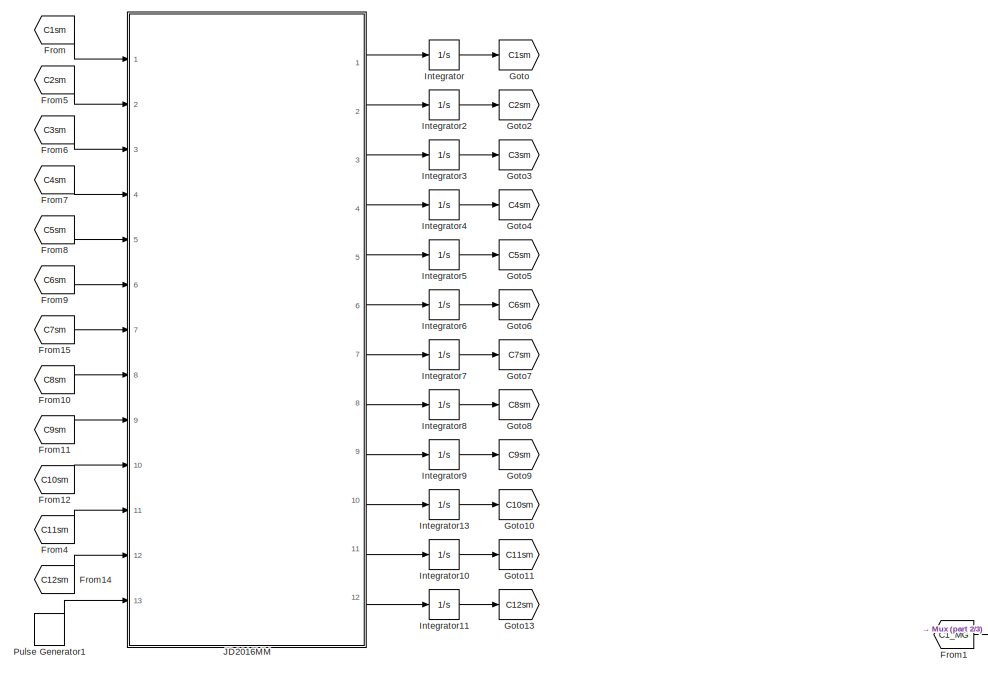
[diagram: root canvas - part 1/3, top left region]
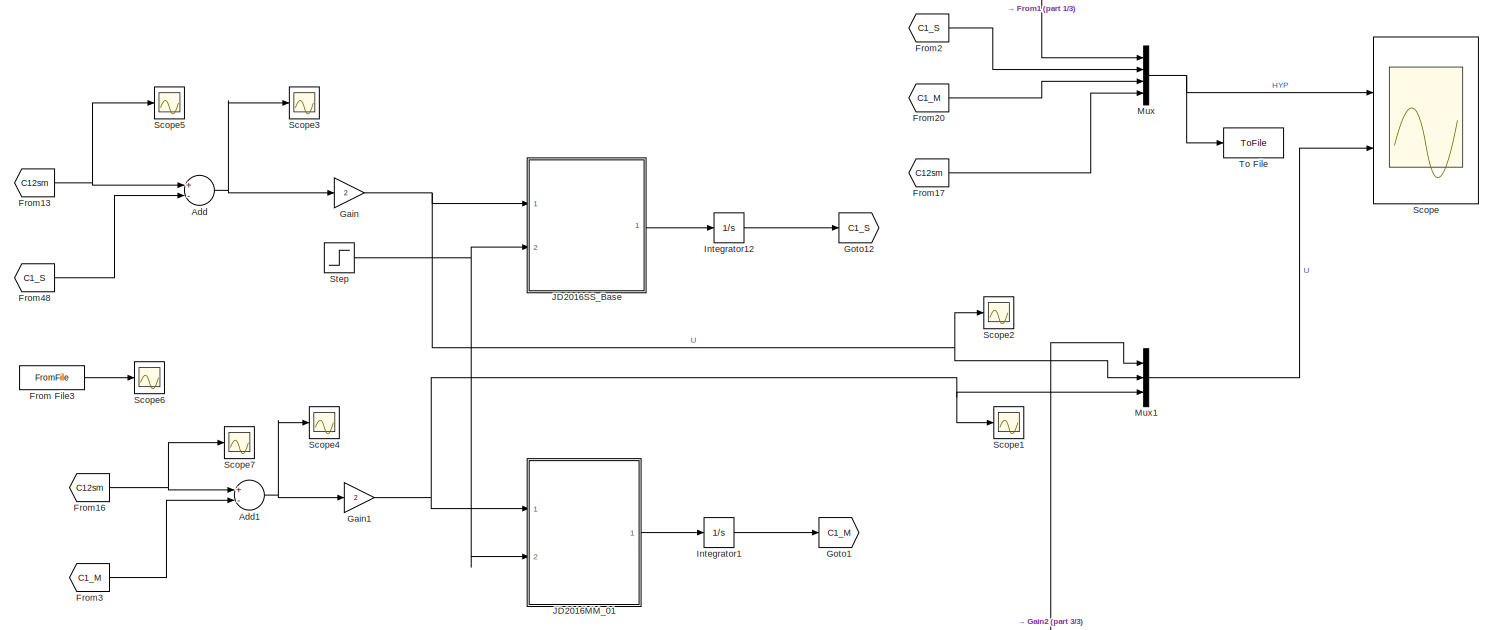
[diagram: root canvas - part 2/3, full width, middle band]
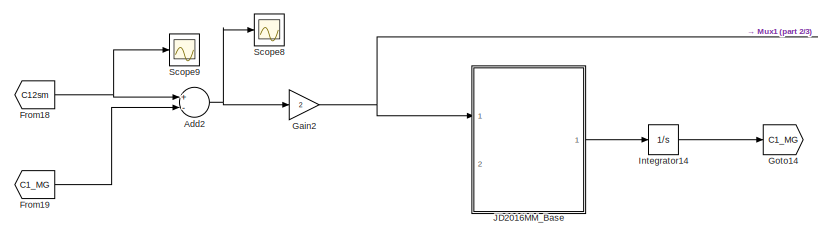
[diagram: root canvas - part 3/3, bottom left region]
MODEL slx_97e9ce0137db
KIND model
CONFIG AbsTol = auto
CONFIG EnableMultiTasking = on
CONFIG FixedStep = auto
CONFIG MaxStep = auto
CONFIG MinStep = auto
CONFIG RelTol = 1e-3
CONFIG SampleTimeConstraint = Unconstrained
CONFIG Solver = VariableStepAuto
CONFIG SolverName = VariableStepAuto
CONFIG StartTime = 0.0
CONFIG StopTime = 96
BLOCK [Sum] Add
  InputSameDT = off
  Inputs = +-
  OutDataTypeStr = Inherit: Inherit via internal rule
  Ports = [2, 1]
  SaturateOnIntegerOverflow = off
BLOCK [Sum] Add1
  InputSameDT = off
  Inputs = +-
  OutDataTypeStr = Inherit: Inherit via internal rule
  Ports = [2, 1]
  SaturateOnIntegerOverflow = off
BLOCK [Sum] Add2
  InputSameDT = off
  Inputs = +-
  OutDataTypeStr = Inherit: Inherit via internal rule
  Ports = [2, 1]
  SaturateOnIntegerOverflow = off
BLOCK [From] From
  GotoTag = C1sm
BLOCK [FromFile] From File3
  FileName = hypsetpoint.mat
  SampleTime = 0
BLOCK [From] From1
  GotoTag = C1_MG
BLOCK [From] From10
  GotoTag = C8sm
BLOCK [From] From11
  GotoTag = C9sm
BLOCK [From] From12
  GotoTag = C10sm
BLOCK [From] From13
  GotoTag = C12sm
BLOCK [From] From14
  GotoTag = C12sm
BLOCK [From] From15
  GotoTag = C7sm
BLOCK [From] From16
  GotoTag = C12sm
BLOCK [From] From17
  GotoTag = C12sm
BLOCK [From] From18
  GotoTag = C12sm
BLOCK [From] From19
  GotoTag = C1_MG
BLOCK [From] From2
  GotoTag = C1_S
BLOCK [From] From20
  GotoTag = C1_M
BLOCK [From] From3
  GotoTag = C1_M
BLOCK [From] From4
  GotoTag = C11sm
BLOCK [From] From48
  GotoTag = C1_S
BLOCK [From] From5
  GotoTag = C2sm
BLOCK [From] From6
  GotoTag = C3sm
BLOCK [From] From7
  GotoTag = C4sm
BLOCK [From] From8
  GotoTag = C5sm
BLOCK [From] From9
  GotoTag = C6sm
BLOCK [Gain] Gain
  Gain = 2
  OutDataTypeStr = Inherit: Inherit via internal rule
  ParamDataTypeStr = Inherit: Inherit via internal rule
  SaturateOnIntegerOverflow = off
BLOCK [Gain] Gain1
  Gain = 2
  OutDataTypeStr = Inherit: Inherit via internal rule
  ParamDataTypeStr = Inherit: Inherit via internal rule
  SaturateOnIntegerOverflow = off
BLOCK [Gain] Gain2
  Gain = 2
  OutDataTypeStr = Inherit: Inherit via internal rule
  ParamDataTypeStr = Inherit: Inherit via internal rule
  SaturateOnIntegerOverflow = off
BLOCK [Goto] Goto
  GotoTag = C1sm
BLOCK [Goto] Goto1
  GotoTag = C1_M
BLOCK [Goto] Goto10
  GotoTag = C10sm
BLOCK [Goto] Goto11
  GotoTag = C11sm
BLOCK [Goto] Goto12
  GotoTag = C1_S
BLOCK [Goto] Goto13
  GotoTag = C12sm
BLOCK [Goto] Goto14
  GotoTag = C1_MG
BLOCK [Goto] Goto2
  GotoTag = C2sm
BLOCK [Goto] Goto3
  GotoTag = C3sm
BLOCK [Goto] Goto4
  GotoTag = C4sm
BLOCK [Goto] Goto5
  GotoTag = C5sm
BLOCK [Goto] Goto6
  GotoTag = C6sm
BLOCK [Goto] Goto7
  GotoTag = C7sm
BLOCK [Goto] Goto8
  GotoTag = C8sm
BLOCK [Goto] Goto9
  GotoTag = C9sm
BLOCK [Integrator] Integrator
  InitialCondition = 1.3627
  Ports = [1, 1]
BLOCK [Integrator] Integrator1
  InitialCondition = 1.3627
  Ports = [1, 1]
BLOCK [Integrator] Integrator10
  InitialCondition = 0.0938
  Ports = [1, 1]
BLOCK [Integrator] Integrator11
  InitialCondition = 6.2713
  Ports = [1, 1]
BLOCK [Integrator] Integrator12
  InitialCondition = 1.3627
  Ports = [1, 1]
BLOCK [Integrator] Integrator13
  InitialCondition = 0.5547
  Ports = [1, 1]
BLOCK [Integrator] Integrator14
  InitialCondition = 1.3627
  Ports = [1, 1]
BLOCK [Integrator] Integrator2
  InitialCondition = 2.2647
  Ports = [1, 1]
BLOCK [Integrator] Integrator3
  InitialCondition = 0.9724
  Ports = [1, 1]
BLOCK [Integrator] Integrator4
  InitialCondition = 0.9495
  Ports = [1, 1]
BLOCK [Integrator] Integrator5
  InitialCondition = 0.1906
  Ports = [1, 1]
BLOCK [Integrator] Integrator6
  InitialCondition = 0.4318
  Ports = [1, 1]
BLOCK [Integrator] Integrator7
  InitialCondition = 0.0332
  Ports = [1, 1]
BLOCK [Integrator] Integrator8
  InitialCondition = 0.0189
  Ports = [1, 1]
BLOCK [Integrator] Integrator9
  InitialCondition = 0.3578
  Ports = [1, 1]
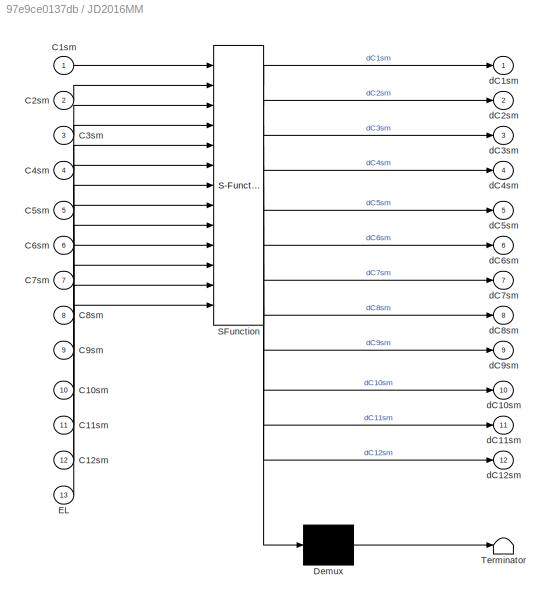
BLOCK [SubSystem] JD2016MM
  ErrorFcn = Stateflow.Translate.translate
  PermitHierarchicalResolution = ExplicitOnly
  Ports = [13, 12]
  RequestExecContextInheritance = off
  SFBlockType = MATLAB Function
  TreatAsAtomicUnit = on
  Variant = off
BLOCK [Demux] JD2016MM/ Demux 
  Outputs = 1
  Ports = [1, 1]
BLOCK [S-Function] JD2016MM/ SFunction 
  EnableBusSupport = on
  FunctionName = sf_sfun
  PortCounts = [13 13]
  Ports = [13, 13]
  SFcnIsStateOwnerBlock = off
  SFunctionDeploymentMode = off
  Tag = Stateflow S-Function S2File_JD2016MMSS 4
BLOCK [Terminator] JD2016MM/ Terminator 
BLOCK [Inport] JD2016MM/C10sm
  IconDisplay = Port number
  Port = 10
BLOCK [Inport] JD2016MM/C11sm
  IconDisplay = Port number
  Port = 11
BLOCK [Inport] JD2016MM/C12sm
  IconDisplay = Port number
  Port = 12
BLOCK [Inport] JD2016MM/C1sm
  IconDisplay = Port number
BLOCK [Inport] JD2016MM/C2sm
  IconDisplay = Port number
  Port = 2
BLOCK [Inport] JD2016MM/C3sm
  IconDisplay = Port number
  Port = 3
BLOCK [Inport] JD2016MM/C4sm
  IconDisplay = Port number
  Port = 4
BLOCK [Inport] JD2016MM/C5sm
  IconDisplay = Port number
  Port = 5
BLOCK [Inport] JD2016MM/C6sm
  IconDisplay = Port number
  Port = 6
BLOCK [Inport] JD2016MM/C7sm
  IconDisplay = Port number
  Port = 7
BLOCK [Inport] JD2016MM/C8sm
  IconDisplay = Port number
  Port = 8
BLOCK [Inport] JD2016MM/C9sm
  IconDisplay = Port number
  Port = 9
BLOCK [Inport] JD2016MM/EL
  IconDisplay = Port number
  Port = 13
BLOCK [Outport] JD2016MM/dC10sm
  IconDisplay = Port number
  Port = 10
BLOCK [Outport] JD2016MM/dC11sm
  IconDisplay = Port number
  Port = 11
BLOCK [Outport] JD2016MM/dC12sm
  IconDisplay = Port number
  Port = 12
BLOCK [Outport] JD2016MM/dC1sm
  IconDisplay = Port number
BLOCK [Outport] JD2016MM/dC2sm
  IconDisplay = Port number
  Port = 2
BLOCK [Outport] JD2016MM/dC3sm
  IconDisplay = Port number
  Port = 3
BLOCK [Outport] JD2016MM/dC4sm
  IconDisplay = Port number
  Port = 4
BLOCK [Outport] JD2016MM/dC5sm
  IconDisplay = Port number
  Port = 5
BLOCK [Outport] JD2016MM/dC6sm
  IconDisplay = Port number
  Port = 6
BLOCK [Outport] JD2016MM/dC7sm
  IconDisplay = Port number
  Port = 7
BLOCK [Outport] JD2016MM/dC8sm
  IconDisplay = Port number
  Port = 8
BLOCK [Outport] JD2016MM/dC9sm
  IconDisplay = Port number
  Port = 9
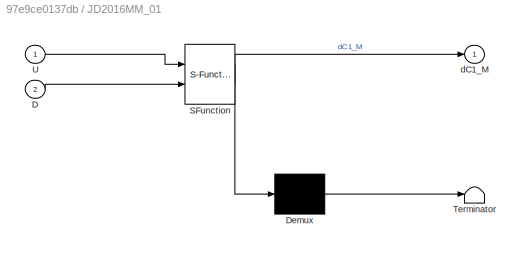
BLOCK [SubSystem] JD2016MM_01
  ErrorFcn = Stateflow.Translate.translate
  PermitHierarchicalResolution = ExplicitOnly
  Ports = [2, 1]
  RequestExecContextInheritance = off
  SFBlockType = MATLAB Function
  TreatAsAtomicUnit = on
  Variant = off
BLOCK [Demux] JD2016MM_01/ Demux 
  Outputs = 1
  Ports = [1, 1]
BLOCK [S-Function] JD2016MM_01/ SFunction 
  EnableBusSupport = on
  FunctionName = sf_sfun
  PortCounts = [2 2]
  Ports = [2, 2]
  SFcnIsStateOwnerBlock = off
  SFunctionDeploymentMode = off
  Tag = Stateflow S-Function S2File_JD2016MMSS 2
BLOCK [Terminator] JD2016MM_01/ Terminator 
BLOCK [Inport] JD2016MM_01/D
  IconDisplay = Port number
  Port = 2
BLOCK [Inport] JD2016MM_01/U
  IconDisplay = Port number
BLOCK [Outport] JD2016MM_01/dC1_M
  IconDisplay = Port number
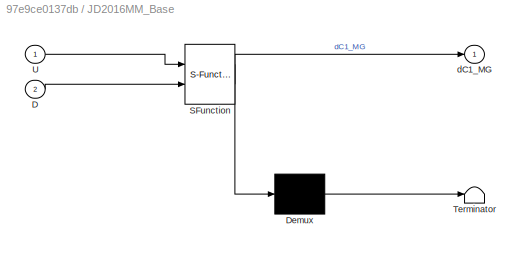
BLOCK [SubSystem] JD2016MM_Base
  ErrorFcn = Stateflow.Translate.translate
  PermitHierarchicalResolution = ExplicitOnly
  Ports = [2, 1]
  RequestExecContextInheritance = off
  SFBlockType = MATLAB Function
  TreatAsAtomicUnit = on
  Variant = off
BLOCK [Demux] JD2016MM_Base/ Demux 
  Outputs = 1
  Ports = [1, 1]
BLOCK [S-Function] JD2016MM_Base/ SFunction 
  EnableBusSupport = on
  FunctionName = sf_sfun
  PortCounts = [2 2]
  Ports = [2, 2]
  SFcnIsStateOwnerBlock = off
  SFunctionDeploymentMode = off
  Tag = Stateflow S-Function S2File_JD2016MMSS 3
BLOCK [Terminator] JD2016MM_Base/ Terminator 
BLOCK [Inport] JD2016MM_Base/D
  IconDisplay = Port number
  Port = 2
BLOCK [Inport] JD2016MM_Base/U
  IconDisplay = Port number
BLOCK [Outport] JD2016MM_Base/dC1_MG
  IconDisplay = Port number
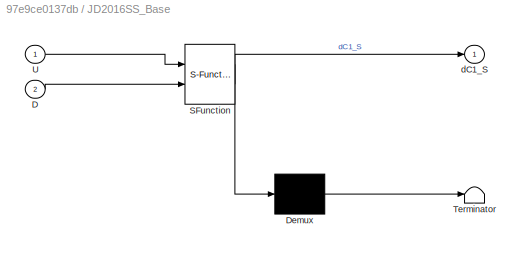
BLOCK [SubSystem] JD2016SS_Base
  ErrorFcn = Stateflow.Translate.translate
  PermitHierarchicalResolution = ExplicitOnly
  Ports = [2, 1]
  RequestExecContextInheritance = off
  SFBlockType = MATLAB Function
  TreatAsAtomicUnit = on
  Variant = off
BLOCK [Demux] JD2016SS_Base/ Demux 
  Outputs = 1
  Ports = [1, 1]
BLOCK [S-Function] JD2016SS_Base/ SFunction 
  EnableBusSupport = on
  FunctionName = sf_sfun
  PortCounts = [2 2]
  Ports = [2, 2]
  SFcnIsStateOwnerBlock = off
  SFunctionDeploymentMode = off
  Tag = Stateflow S-Function S2File_JD2016MMSS 1
BLOCK [Terminator] JD2016SS_Base/ Terminator 
BLOCK [Inport] JD2016SS_Base/D
  IconDisplay = Port number
  Port = 2
BLOCK [Inport] JD2016SS_Base/U
  IconDisplay = Port number
BLOCK [Outport] JD2016SS_Base/dC1_S
  IconDisplay = Port number
BLOCK [Mux] Mux
  DisplayOption = bar
  Ports = [4, 1]
BLOCK [Mux] Mux1
  DisplayOption = bar
  Inputs = 3
  Ports = [3, 1]
BLOCK [DiscretePulseGenerator] Pulse Generator1
  Period = 24
  Ports = [0, 1]
  PulseType = Time based
  PulseWidth = 50
BLOCK [Scope] Scope
  NumInputPorts = 2
  Ports = [2]
  ScopeSpecificationString = Simulink.scopes.TimeScopeBlockCfg('CurrentConfiguration', extmgr.ConfigurationSet(extmgr.Configuration('Core','General UI',true),extmgr.Configuration('Core','Source UI',true),extmgr.Configuration('Sources','WiredSimulink',true),extmgr.Configuration('Visuals','Time Domain',true,'SerializedDisplays',{struct('MinYLimReal','0.27279','MaxYLimReal','11.17188','YLabelReal','','MinYLimMag','0.27279','MaxY...<+2019ch>
BLOCK [Scope] Scope1
  NumInputPorts = 1
  Ports = [1]
  ScopeSpecificationString = Simulink.scopes.TimeScopeBlockCfg('CurrentConfiguration', extmgr.ConfigurationSet(extmgr.Configuration('Core','General UI',true),extmgr.Configuration('Core','Source UI',true),extmgr.Configuration('Sources','WiredSimulink',true,'DataLoggingVariableName','ScopeData1','DataLoggingLimitDataPoints',true,'DataLoggingSaveFormat','Array','DataLoggingDecimation','1','DataLoggingDecimateData',true),extmgr.C...<+1516ch>
BLOCK [Scope] Scope2
  NumInputPorts = 1
  Ports = [1]
  ScopeSpecificationString = Simulink.scopes.TimeScopeBlockCfg('CurrentConfiguration', extmgr.ConfigurationSet(extmgr.Configuration('Core','General UI',true),extmgr.Configuration('Core','Source UI',true),extmgr.Configuration('Sources','WiredSimulink',true,'DataLoggingVariableName','ScopeData3','DataLoggingLimitDataPoints',true,'DataLoggingSaveFormat','Array','DataLoggingDecimation','1','DataLoggingDecimateData',true),extmgr.C...<+1514ch>
BLOCK [Scope] Scope3
  NumInputPorts = 1
  Ports = [1]
  ScopeSpecificationString = Simulink.scopes.TimeScopeBlockCfg('CurrentConfiguration', extmgr.ConfigurationSet(extmgr.Configuration('Core','General UI',true),extmgr.Configuration('Core','Source UI',true),extmgr.Configuration('Sources','WiredSimulink',true,'DataLoggingVariableName','ScopeData2','DataLoggingLimitDataPoints',true,'DataLoggingSaveFormat','Array','DataLoggingDecimation','1','DataLoggingDecimateData',true),extmgr.C...<+1512ch>
BLOCK [Scope] Scope4
  NumInputPorts = 1
  Ports = [1]
  ScopeSpecificationString = Simulink.scopes.TimeScopeBlockCfg('CurrentConfiguration', extmgr.ConfigurationSet(extmgr.Configuration('Core','General UI',true),extmgr.Configuration('Core','Source UI',true),extmgr.Configuration('Sources','WiredSimulink',true,'DataLoggingVariableName','ScopeData4','DataLoggingLimitDataPoints',true,'DataLoggingSaveFormat','Array','DataLoggingDecimation','1','DataLoggingDecimateData',true),extmgr.C...<+1511ch>
BLOCK [Scope] Scope5
  NumInputPorts = 1
  Ports = [1]
  ScopeSpecificationString = Simulink.scopes.TimeScopeBlockCfg('CurrentConfiguration', extmgr.ConfigurationSet(extmgr.Configuration('Core','General UI',true),extmgr.Configuration('Core','Source UI',true),extmgr.Configuration('Sources','WiredSimulink',true,'DataLoggingVariableName','ScopeData5','DataLoggingLimitDataPoints',true,'DataLoggingSaveFormat','Array','DataLoggingDecimation','1','DataLoggingDecimateData',true),extmgr.C...<+1523ch>
BLOCK [Scope] Scope6
  NumInputPorts = 1
  Ports = [1]
  ScopeSpecificationString = Simulink.scopes.TimeScopeBlockCfg('CurrentConfiguration', extmgr.ConfigurationSet(extmgr.Configuration('Core','General UI',true),extmgr.Configuration('Core','Source UI',true),extmgr.Configuration('Sources','WiredSimulink',true,'DataLoggingVariableName','ScopeData6','DataLoggingLimitDataPoints',true,'DataLoggingSaveFormat','Array','DataLoggingDecimation','1','DataLoggingDecimateData',true),extmgr.C...<+1540ch>
BLOCK [Scope] Scope7
  NumInputPorts = 1
  Ports = [1]
  ScopeSpecificationString = Simulink.scopes.TimeScopeBlockCfg('CurrentConfiguration', extmgr.ConfigurationSet(extmgr.Configuration('Core','General UI',true),extmgr.Configuration('Core','Source UI',true),extmgr.Configuration('Sources','WiredSimulink',true,'DataLoggingVariableName','ScopeData7','DataLoggingLimitDataPoints',true,'DataLoggingSaveFormat','Array','DataLoggingDecimation','1','DataLoggingDecimateData',true),extmgr.C...<+1523ch>
BLOCK [Scope] Scope8
  NumInputPorts = 1
  Ports = [1]
  ScopeSpecificationString = Simulink.scopes.TimeScopeBlockCfg('CurrentConfiguration', extmgr.ConfigurationSet(extmgr.Configuration('Core','General UI',true),extmgr.Configuration('Core','Source UI',true),extmgr.Configuration('Sources','WiredSimulink',true,'DataLoggingVariableName','ScopeData1','DataLoggingLimitDataPoints',true,'DataLoggingSaveFormat','Array','DataLoggingDecimation','1','DataLoggingDecimateData',true),extmgr.C...<+1511ch>
BLOCK [Scope] Scope9
  NumInputPorts = 1
  Ports = [1]
  ScopeSpecificationString = Simulink.scopes.TimeScopeBlockCfg('CurrentConfiguration', extmgr.ConfigurationSet(extmgr.Configuration('Core','General UI',true),extmgr.Configuration('Core','Source UI',true),extmgr.Configuration('Sources','WiredSimulink',true,'DataLoggingVariableName','ScopeData2','DataLoggingLimitDataPoints',true,'DataLoggingSaveFormat','Array','DataLoggingDecimation','1','DataLoggingDecimateData',true),extmgr.C...<+1523ch>
BLOCK [Step] Step
  After = -0.01
  SampleTime = 0
  Time = 50
BLOCK [ToFile] To File
  Filename = hypoutputcompare
  MatrixName = yhyp
  Ports = [1]
NET Add1:1 -> Gain1:1, Scope4:1
NET Add2:1 -> Gain2:1, Scope8:1
NET Add:1 -> Gain:1, Scope3:1
LINE From File3:1 -> Scope6:1
LINE From10:1 -> JD2016MM:8
LINE From11:1 -> JD2016MM:9
LINE From12:1 -> JD2016MM:10
NET From13:1 -> Add:1, Scope5:1
LINE From14:1 -> JD2016MM:12
LINE From15:1 -> JD2016MM:7
NET From16:1 -> Add1:1, Scope7:1
LINE From17:1 -> Mux:4
NET From18:1 -> Add2:1, Scope9:1
LINE From19:1 -> Add2:2
LINE From1:1 -> Mux:1
LINE From20:1 -> Mux:3
LINE From2:1 -> Mux:2
LINE From3:1 -> Add1:2
LINE From48:1 -> Add:2
LINE From4:1 -> JD2016MM:11
LINE From5:1 -> JD2016MM:2
LINE From6:1 -> JD2016MM:3
LINE From7:1 -> JD2016MM:4
LINE From8:1 -> JD2016MM:5
LINE From9:1 -> JD2016MM:6
LINE From:1 -> JD2016MM:1
NET Gain1:1 -> JD2016MM_01:1, Mux1:3, Scope1:1
NET Gain2:1 -> JD2016MM_Base:1, Mux1:1
NET Gain:1 -> JD2016SS_Base:1, Mux1:2, Scope2:1
LINE Integrator10:1 -> Goto11:1
LINE Integrator11:1 -> Goto13:1
LINE Integrator12:1 -> Goto12:1
LINE Integrator13:1 -> Goto10:1
LINE Integrator14:1 -> Goto14:1
LINE Integrator1:1 -> Goto1:1
LINE Integrator2:1 -> Goto2:1
LINE Integrator3:1 -> Goto3:1
LINE Integrator4:1 -> Goto4:1
LINE Integrator5:1 -> Goto5:1
LINE Integrator6:1 -> Goto6:1
LINE Integrator7:1 -> Goto7:1
LINE Integrator8:1 -> Goto8:1
LINE Integrator9:1 -> Goto9:1
LINE Integrator:1 -> Goto:1
LINE JD2016MM:1 -> Integrator:1
LINE JD2016MM:10 -> Integrator13:1
LINE JD2016MM:11 -> Integrator10:1
LINE JD2016MM:12 -> Integrator11:1
LINE JD2016MM:2 -> Integrator2:1
LINE JD2016MM:3 -> Integrator3:1
LINE JD2016MM:4 -> Integrator4:1
LINE JD2016MM:5 -> Integrator5:1
LINE JD2016MM:6 -> Integrator6:1
LINE JD2016MM:7 -> Integrator7:1
LINE JD2016MM:8 -> Integrator8:1
LINE JD2016MM:9 -> Integrator9:1
LINE JD2016MM_01:1 -> Integrator1:1
LINE JD2016MM_Base:1 -> Integrator14:1
LINE JD2016SS_Base:1 -> Integrator12:1
LINE Mux1:1 -> Scope:2
NET Mux:1 -> Scope:1, To File:1
LINE Pulse Generator1:1 -> JD2016MM:13
NET Step:1 -> JD2016MM_01:2, JD2016SS_Base:2
note: NET lines group one-source signal fan-out (src -> all destinations, sorted); 1:1 wires keep LINE
CHART JD2016SS_Base states=1 transitions=1
  STATE_LABEL 'eML_blk_kernel()'
  STATE_LABEL 'SCRIPT:\nfunction dC1_S = fcn(U,D)\n\n%% For HYP phenotype\n% % Base Value (MSE = 0.0313)\n% prmLHY = [0.72294,-1.2502,-0.042071,0.75237,-0.97172];\n% prpLHY = [0.80635,0.74888,0.74688];\n% prmP97 = [0.026394,0.12407,-2.3687,-0.10561,0.35392,1.5597];\n% prpP97 = [1.0733,0.29692,-0.050611];\n% prmP51 = [0.38365,-0.71673,0.17357,1.013];\n% prpP51 = [0.55202,0.41674,-0.27927];\n% prmEL = [0.010977,-1.8819,-1.39...<+3608ch>'
CHART JD2016MM_01 states=1 transitions=1
  STATE_LABEL 'eML_blk_kernel()'
  STATE_LABEL 'SCRIPT:\nfunction dC1_M = fcn(U,D)\n\n% % Base Value\n% prmLHY = [1.5593,3.1251,8.5131,0.52816,0.57095,0.27846];\n% prpLHY = [1.4223,1.6312,1.2323];\n% prmP97 = [6.6492,1.0127,1.1825,0.27924,4.3706,5.9883,0.21494];\n% prpP97 = [1.4474,0.98029,0.4934];\n% prmP51 = [1.029,1.6903,0.3192,0.6966];\n% prpP51 = [0.71371,0.50082,0.79076];\n% prmEL = [1.8696,3.412,0.98472,0.44702,0.71066];\n% prpEL = [4.4692,4.2413,2...<+3608ch>'
CHART JD2016MM_Base states=1 transitions=1
  STATE_LABEL 'eML_blk_kernel()'
  STATE_LABEL 'SCRIPT:\nfunction dC1_MG = fcn(U,D)\n\n% % Base Value\n% prmLHY = [1.5593,3.1251,8.5131,0.52816,0.57095,0.27846];\n% prpLHY = [1.4223,1.6312,1.2323];\n% prmP97 = [6.6492,1.0127,1.1825,0.27924,4.3706,5.9883,0.21494];\n% prpP97 = [1.4474,0.98029,0.4934];\n% prmP51 = [1.029,1.6903,0.3192,0.6966];\n% prpP51 = [0.71371,0.50082,0.79076];\n% prmEL = [1.8696,3.412,0.98472,0.44702,0.71066];\n% prpEL = [4.4692,4.2413,...<+3608ch>'
CHART JD2016MM states=1 transitions=1
  STATE_LABEL 'eML_blk_kernel()'
  STATE_LABEL 'SCRIPT:\nfunction [dC1sm,dC2sm,dC3sm,dC4sm,dC5sm,dC6sm,dC7sm,dC8sm,dC9sm,dC10sm,dC11sm,dC12sm] ...\n    = fcn(C1sm,C2sm,C3sm,C4sm,C5sm,C6sm,C7sm,C8sm,C9sm,C10sm,C11sm,C12sm,EL)\n\n% Base value\nprmLHY = [4.6,3,39.0625,0.6944,0.53,0.21];\nprpLHY = [0.76,0.42,0.68];\nprmP97 = [5,1.3,1.5,sqrt(0.0576),sqrt(18.9036),sqrt(11.1111),0.35];\nprpP97 = [1,0.5,0.3];\nprmP51 = [1,sqrt(4.7259),sqrt(0.25),0.56];\nprpP51 =...<+3608ch>'
